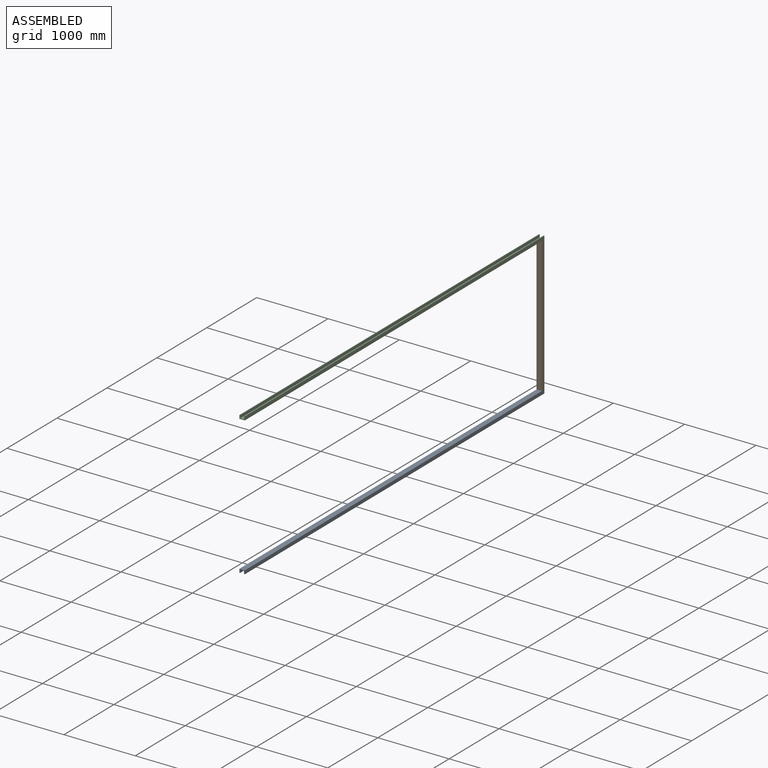
[diagram: assembled view]
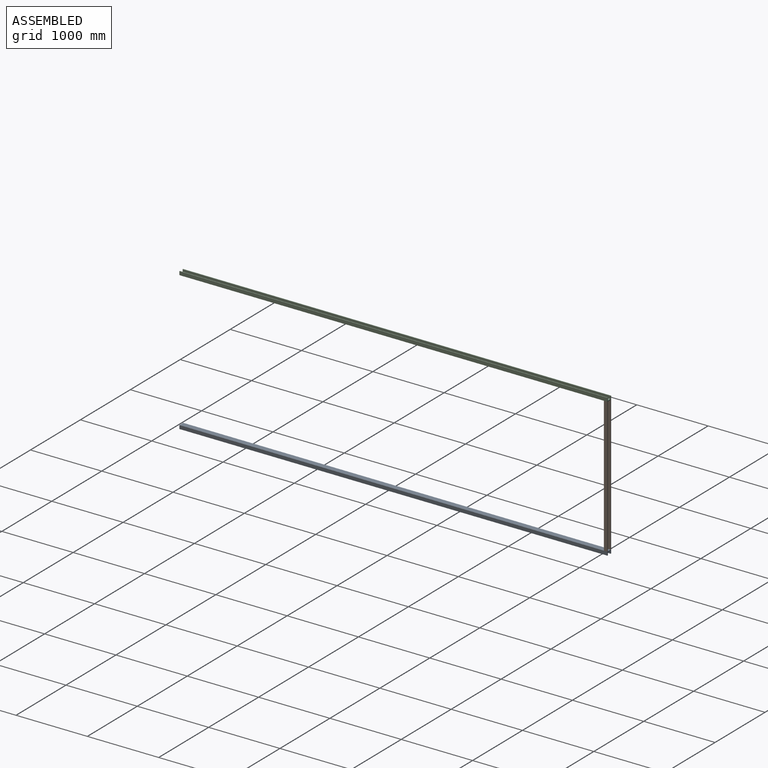
[diagram: assembled view, second angle]
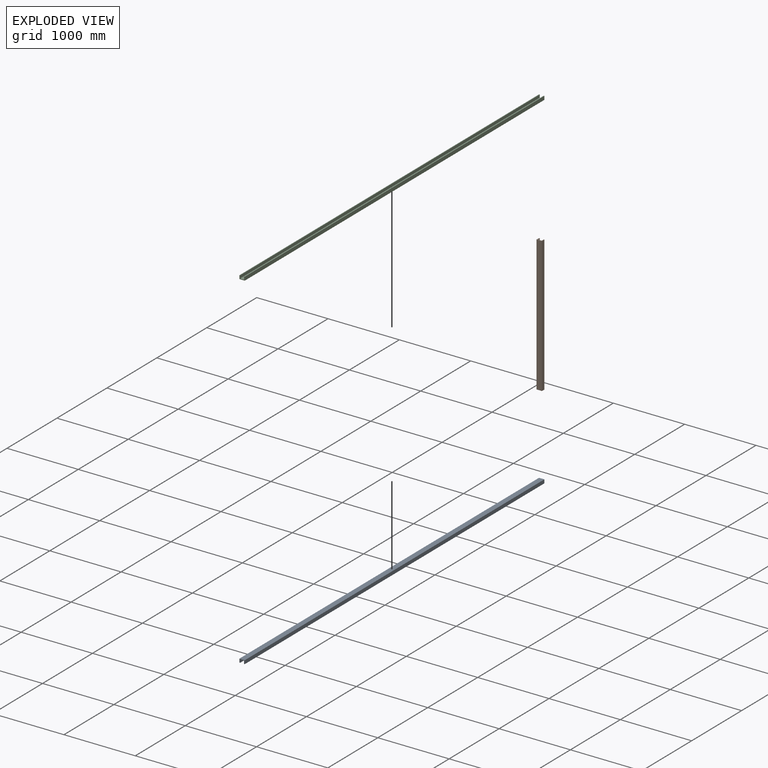
[diagram: exploded view]
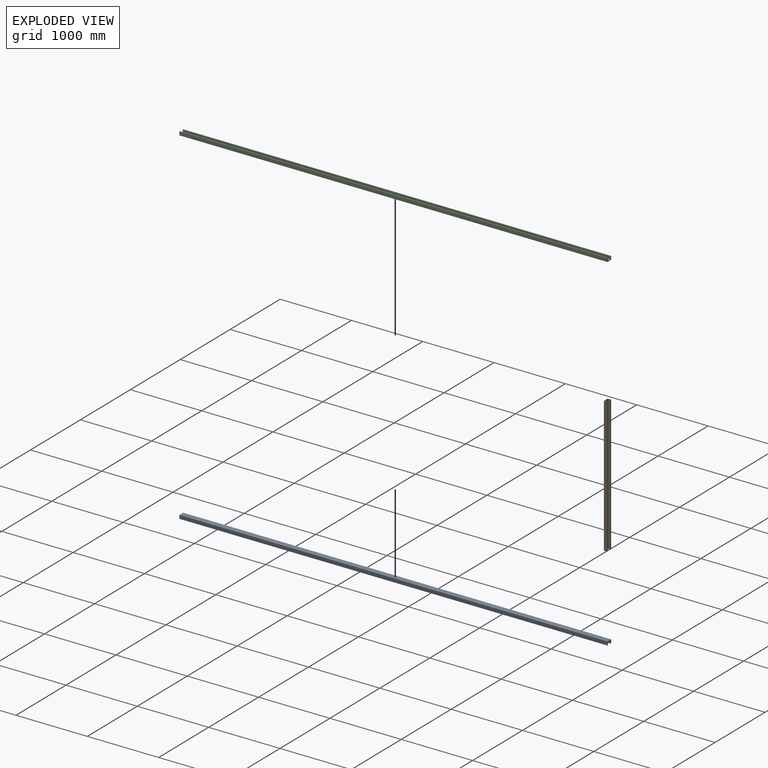
[diagram: exploded view, second angle]
ASSEMBLY  parts=3 mates=2
PART A: 10 faces, bbox 75x6000x50 mm
  f0: plane 6000x75mm, normal (0,0,-1), area 450000mm2, adj f1,f7,f8,f9
  f1: plane 6000x50mm, normal (1,0,0), area 300000mm2, adj f0,f2,f8,f9
  f2: plane 6000x10mm, normal (0,0,1), area 60000mm2, adj f1,f3,f8,f9
  f3: plane 6000x39.58mm, normal (-1,0,0), area 237482.8mm2, adj f2,f4,f8,f9
  f4: plane 6000x55mm, normal (0,0,1), area 330000mm2, adj f3,f5,f8,f9
  f5: plane 6000x39.58mm, normal (1,0,0), area 237482.8mm2, adj f4,f6,f8,f9
  f6: plane 6000x10mm, normal (0,0,1), area 60000mm2, adj f5,f7,f8,f9
  f7: plane 6000x50mm, normal (-1,0,0), area 300000mm2, adj f0,f6,f8,f9
  f8: plane 75x50mm, normal (0,-1,0), area 1573.1mm2, adj f0,f1,f2,f3,f4,f5,f6,f7
  f9: plane 75x50mm, normal (0,1,0), area 1573.1mm2, adj f0,f1,f2,f3,f4,f5,f6,f7
PART B: 10 faces, bbox 75x1900x50 mm
  f0: plane 1900x75mm, normal (0,0,-1), area 142500mm2, adj f1,f7,f8,f9
  f1: plane 1900x50mm, normal (1,0,0), area 95000mm2, adj f0,f2,f8,f9
  f2: plane 1900x10mm, normal (0,0,1), area 19000mm2, adj f1,f3,f8,f9
  f3: plane 1900x40mm, normal (-1,0,0), area 76000mm2, adj f2,f4,f8,f9
  f4: plane 1900x55mm, normal (0,0,1), area 104500mm2, adj f3,f5,f8,f9
  f5: plane 1900x40mm, normal (1,0,0), area 76000mm2, adj f4,f6,f8,f9
  f6: plane 1900x10mm, normal (0,0,1), area 19000mm2, adj f5,f7,f8,f9
  f7: plane 1900x50mm, normal (-1,0,0), area 95000mm2, adj f0,f6,f8,f9
  f8: plane 75x50mm, normal (0,-1,0), area 1550mm2, adj f0,f1,f2,f3,f4,f5,f6,f7
  f9: plane 75x50mm, normal (0,1,0), area 1550mm2, adj f0,f1,f2,f3,f4,f5,f6,f7
PART C: same geometry as A
PLACE A rot(axis=(0,1,0),180deg) t=(-1318.37,-3406.42,-243.37)mm
PLACE B rot(axis=(-1,0,0),90deg) t=(-1318.37,-3456.42,-243.37)mm
PLACE C t=(-1318.37,-3406.42,1656.63)mm
MATE parallel A.f0 <-> B.f9  axis (0,0,-1) through (-1355.87,-3406.42,-243.37)mm
MATE parallel C.f9 <-> B.f2  axis (0,1,0) through (-1280.87,-3406.42,1656.63)mm
